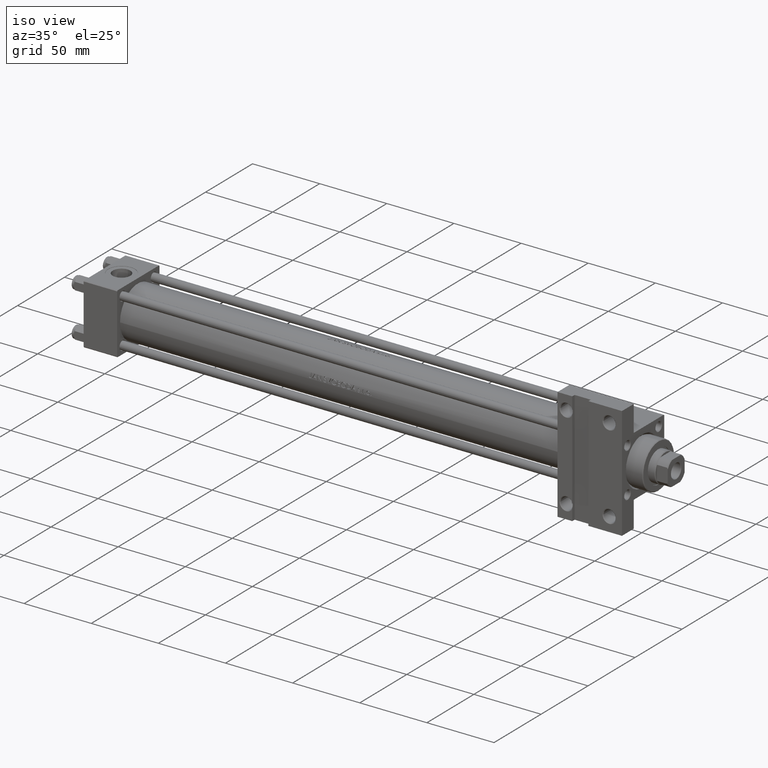
[diagram: clean part render]
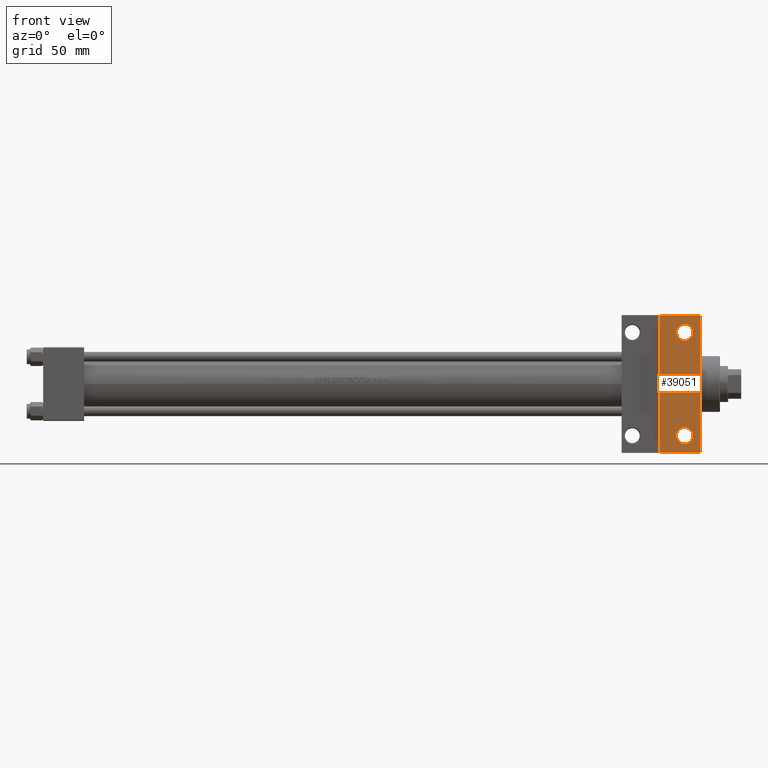
[diagram: tour spotlight — one face highlighted and labeled with its STEP entity id]
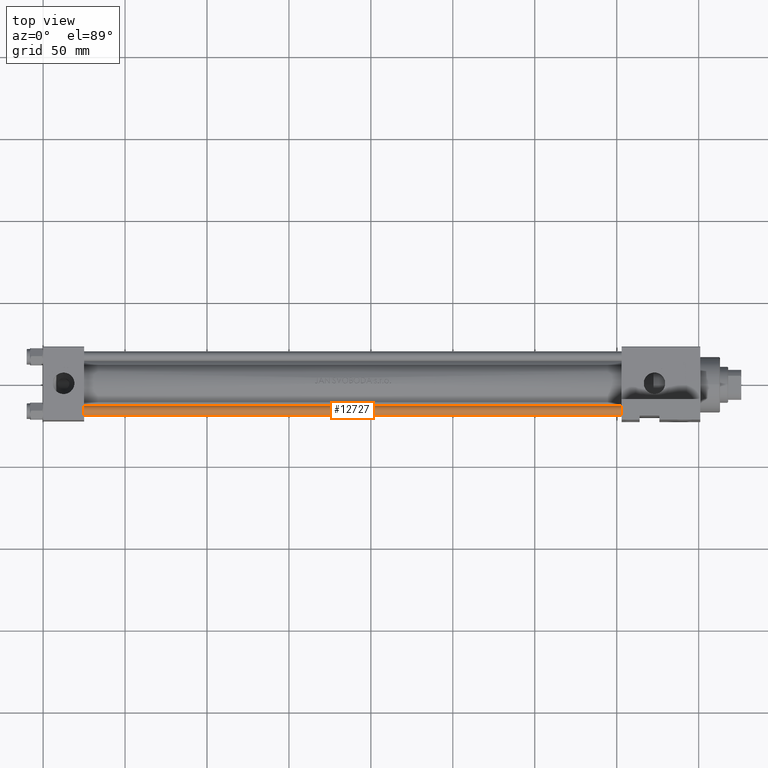
[diagram: tour spotlight — one face highlighted and labeled with its STEP entity id]
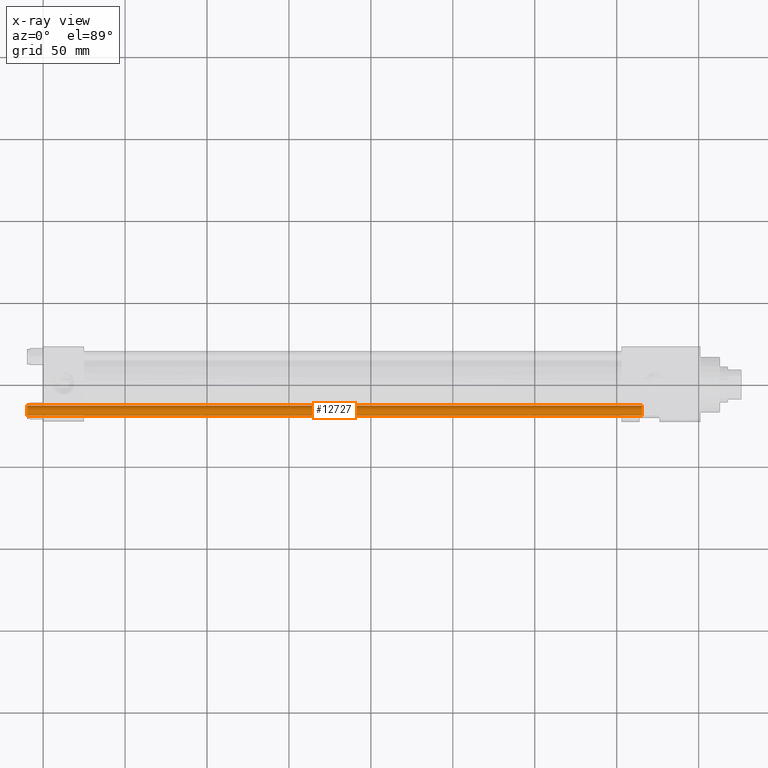
[diagram: x-ray of the same camera — body ghosted, this tour face saturated]
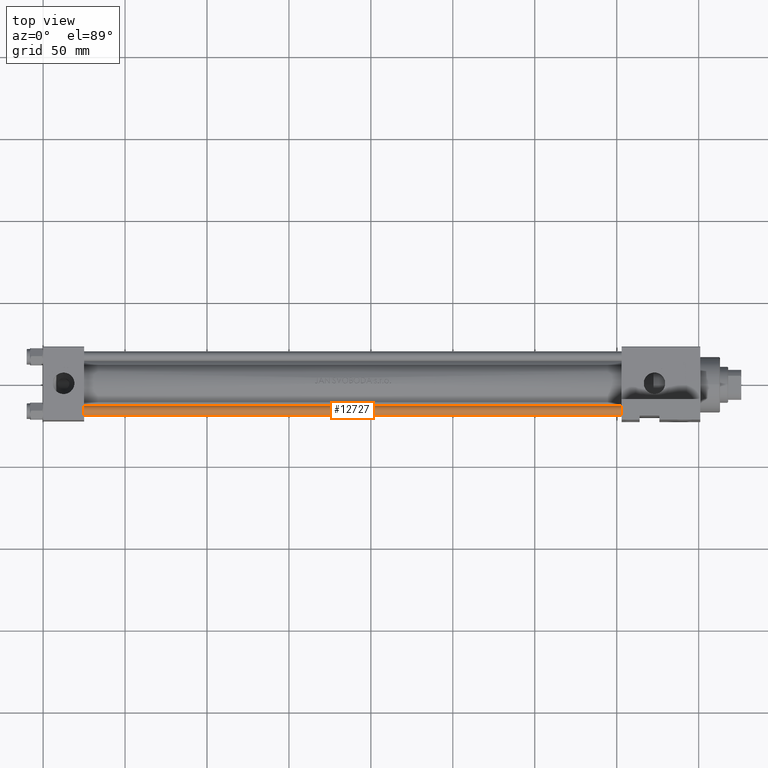
[diagram: tour spotlight — one face highlighted and labeled with its STEP entity id]
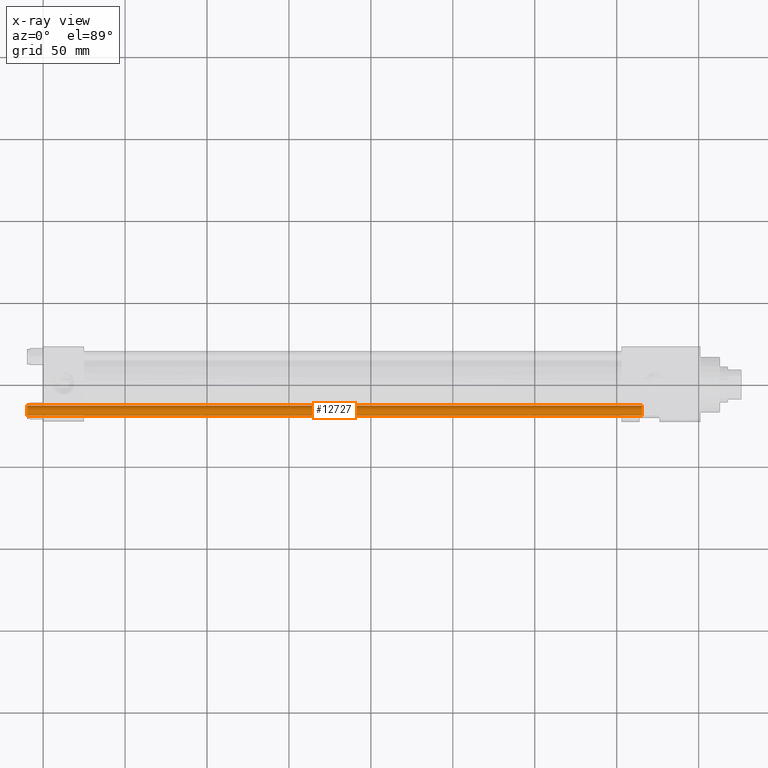
[diagram: x-ray of the same camera — body ghosted, this tour face saturated]
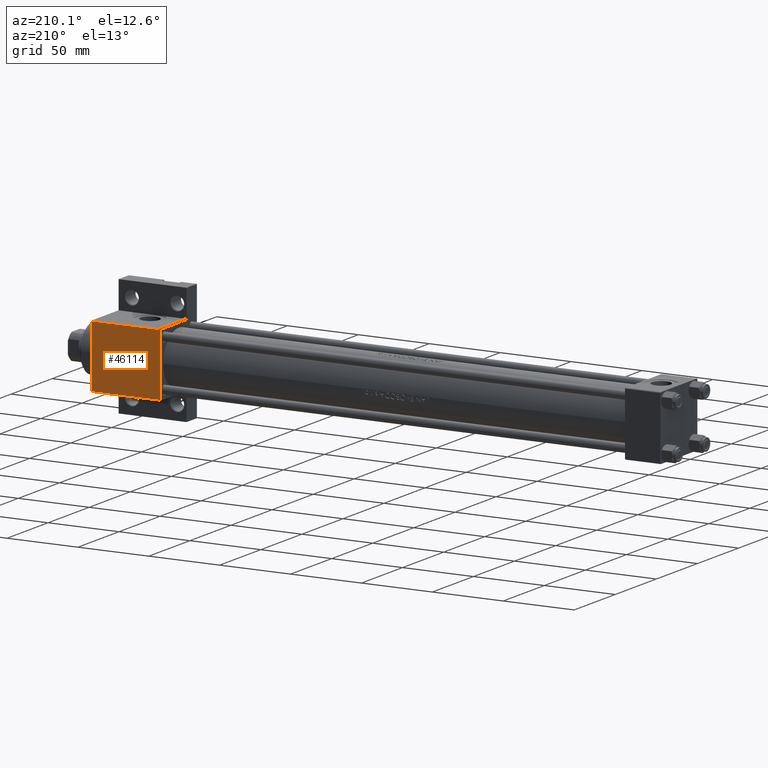
[diagram: tour spotlight — one face highlighted and labeled with its STEP entity id]
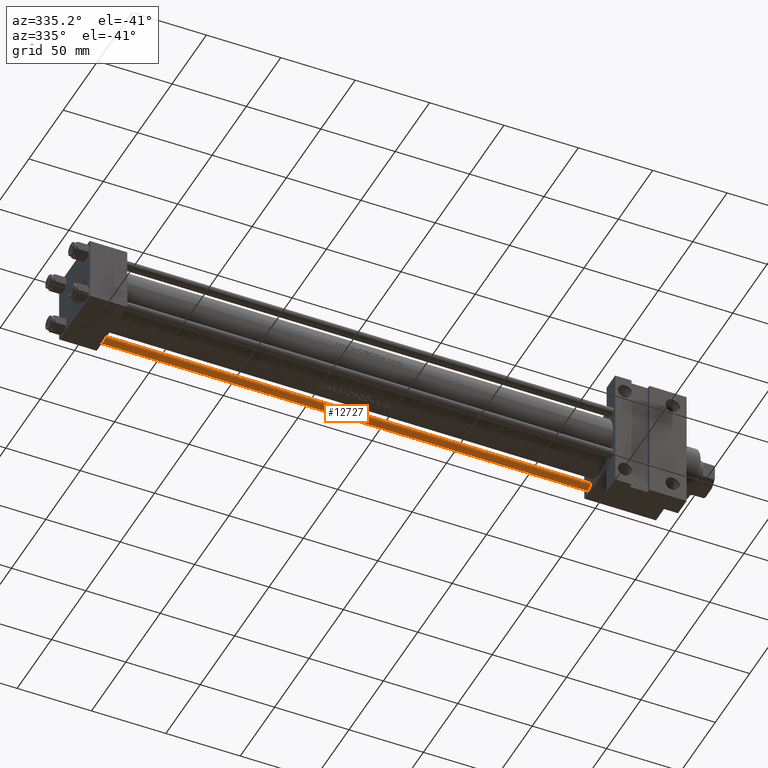
[diagram: tour spotlight — one face highlighted and labeled with its STEP entity id]
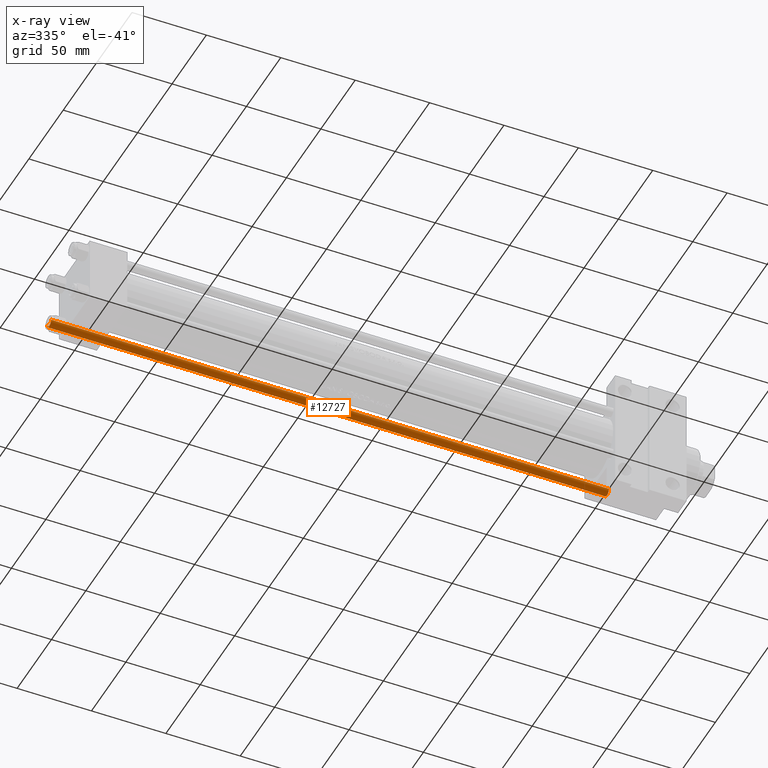
[diagram: x-ray of the same camera — body ghosted, this tour face saturated]
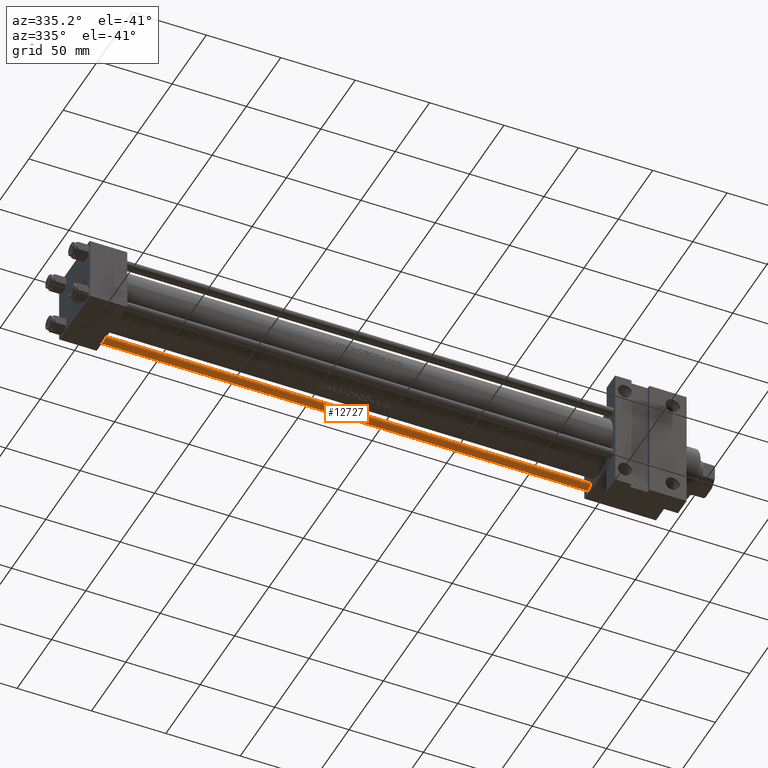
[diagram: tour spotlight — one face highlighted and labeled with its STEP entity id]
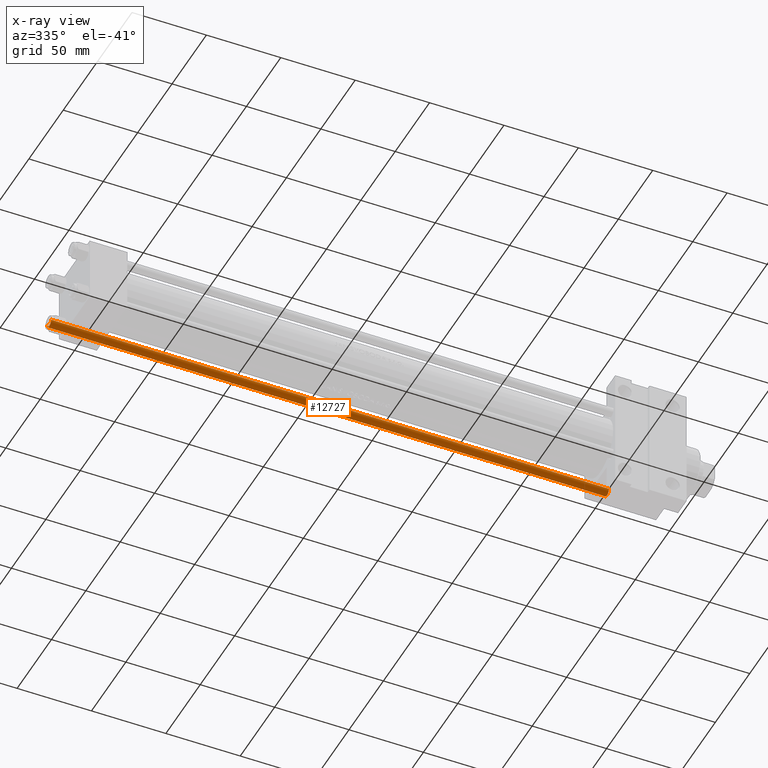
[diagram: x-ray of the same camera — body ghosted, this tour face saturated]
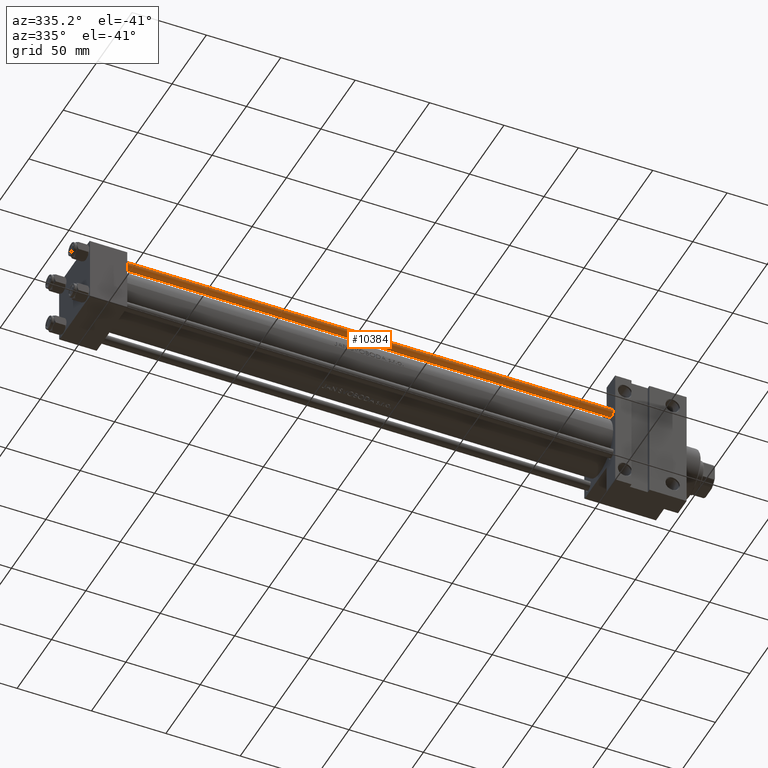
[diagram: tour spotlight — one face highlighted and labeled with its STEP entity id]
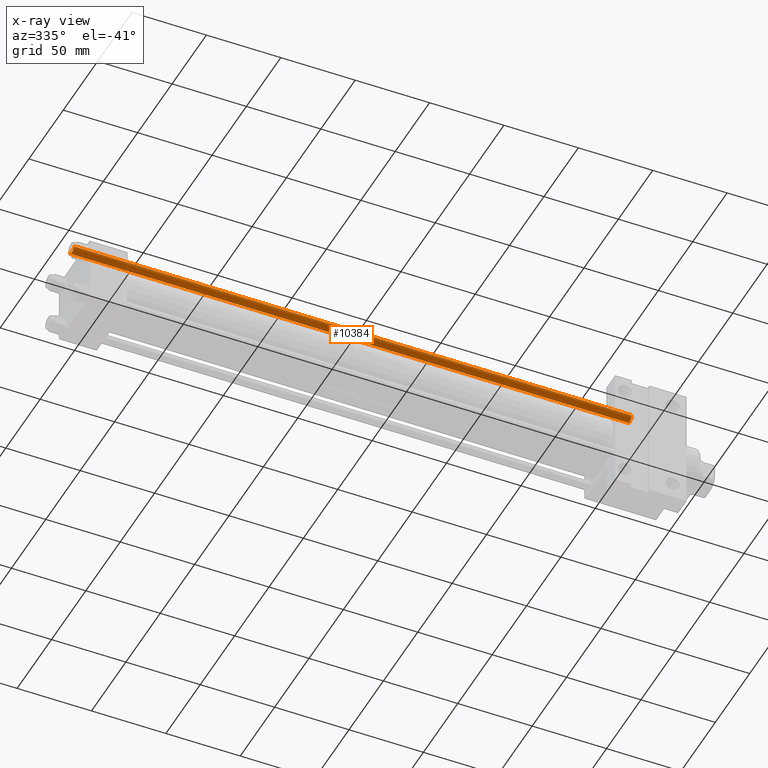
[diagram: x-ray of the same camera — body ghosted, this tour face saturated]
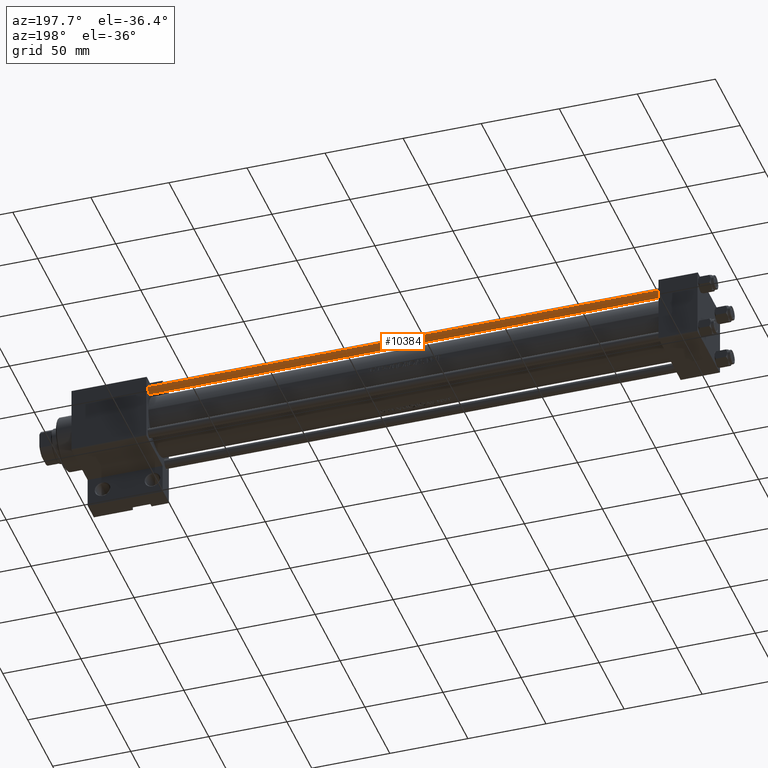
[diagram: tour spotlight — one face highlighted and labeled with its STEP entity id]
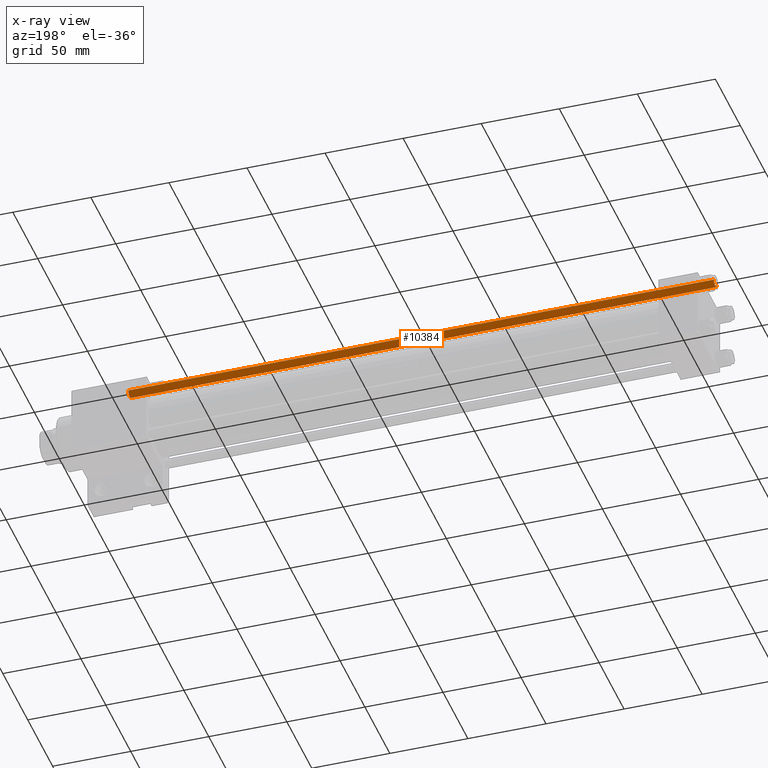
[diagram: x-ray of the same camera — body ghosted, this tour face saturated]
A machine part: a face-by-face anatomy tour. The part has 1102 B-rep faces; the first image is the clean iso view, then the 8 largest visible faces are spotlighted one at a time (largest first), each with its STEP entity span.

Face 1 — front view, entity #39051. In plain terms, the highlighted planar face has unit normal (0, -1, -0).
Definition (entity closure, byte-faithful):
#414 = ORIENTED_EDGE ( 'NONE', *, *, #5101, .T. ) ;
#875 = ORIENTED_EDGE ( 'NONE', *, *, #37251, .T. ) ;
#1439 = EDGE_CURVE ( 'NONE', #1528, #22486, #35266, .T. ) ;
#1528 = VERTEX_POINT ( 'NONE', #9298 ) ;
#2141 = DIRECTION ( 'NONE',  ( 0.000000000000000000, 7.709882115452476934E-17, -1.000000000000000000 ) ) ;
#2443 = CARTESIAN_POINT ( 'NONE',  ( 391.4999999999999432, -31.50000000000000000, -22.50000000000000000 ) ) ;
#3647 = CARTESIAN_POINT ( 'NONE',  ( 386.5005000000001587, -31.50000000000000000, -22.50000000000000000 ) ) ;
#4189 = EDGE_CURVE ( 'NONE', #18960, #36683, #10552, .T. ) ;
#4488 = DIRECTION ( 'NONE',  ( -0.000000000000000000, -7.709882115452476934E-17, 1.000000000000000000 ) ) ;
#4710 = EDGE_CURVE ( 'NONE', #40389, #36683, #20770, .T. ) ;
#4746 = VERTEX_POINT ( 'NONE', #27465 ) ;
#5101 = EDGE_CURVE ( 'NONE', #22486, #1528, #32284, .T. ) ;
#5105 = EDGE_LOOP ( 'NONE', ( #26513, #6484, #875, #26002 ) ) ;
#5133 = DIRECTION ( 'NONE',  ( -0.000000000000000000, -7.709882115452476934E-17, 1.000000000000000000 ) ) ;
#5526 = FACE_BOUND ( 'NONE', #43813, .T. ) ;
#5632 = DIRECTION ( 'NONE',  ( 1.000000000000000000, 0.000000000000000000, 0.000000000000000000 ) ) ;
#5746 = EDGE_CURVE ( 'NONE', #34631, #22233, #11490, .T. ) ;
#6005 = FACE_BOUND ( 'NONE', #17871, .T. ) ;
#6484 = ORIENTED_EDGE ( 'NONE', *, *, #45851, .T. ) ;
#6855 = AXIS2_PLACEMENT_3D ( 'NONE', #2443, #24165, #17163 ) ;
#7928 = EDGE_CURVE ( 'NONE', #22233, #34631, #12331, .T. ) ;
#9298 = CARTESIAN_POINT ( 'NONE',  ( 396.4994999999997844, 31.50000000000000000, -22.49999999999999645 ) ) ;
#9475 = DIRECTION ( 'NONE',  ( 0.000000000000000000, 1.000000000000000000, 0.000000000000000000 ) ) ;
#10552 = LINE ( 'NONE', #29383, #44584 ) ;
#11490 = CIRCLE ( 'NONE', #6855, 4.999499999999823530 ) ;
#12331 = CIRCLE ( 'NONE', #45476, 4.999499999999823530 ) ;
#14228 = DIRECTION ( 'NONE',  ( -1.000000000000000000, 2.891205793294679312E-16, -0.000000000000000000 ) ) ;
#14410 = CARTESIAN_POINT ( 'NONE',  ( 391.4999999999999432, 31.50000000000000000, -22.49999999999999645 ) ) ;
#17163 = DIRECTION ( 'NONE',  ( 0.000000000000000000, 1.000000000000000000, 0.000000000000000000 ) ) ;
#17223 = ORIENTED_EDGE ( 'NONE', *, *, #7928, .T. ) ;
#17871 = EDGE_LOOP ( 'NONE', ( #414, #33170 ) ) ;
#18960 = VERTEX_POINT ( 'NONE', #26291 ) ;
#18968 = LINE ( 'NONE', #25119, #41349 ) ;
#20135 = CARTESIAN_POINT ( 'NONE',  ( 401.0000000000000000, 22.50000000000000355, -22.49999999999999645 ) ) ;
#20770 = LINE ( 'NONE', #43219, #33059 ) ;
#20787 = CARTESIAN_POINT ( 'NONE',  ( 376.0000000000000000, -41.99999999999996447, -22.50000000000000000 ) ) ;
#20883 = CARTESIAN_POINT ( 'NONE',  ( 386.5005000000001587, 31.50000000000000000, -22.49999999999999645 ) ) ;
#22233 = VERTEX_POINT ( 'NONE', #3647 ) ;
#22486 = VERTEX_POINT ( 'NONE', #20883 ) ;
#23779 = AXIS2_PLACEMENT_3D ( 'NONE', #14410, #36875, #25531 ) ;
#24165 = DIRECTION ( 'NONE',  ( -0.000000000000000000, -7.709882115452476934E-17, 1.000000000000000000 ) ) ;
#25119 = CARTESIAN_POINT ( 'NONE',  ( 353.0000000000000000, 41.99999999999996447, -22.50000000000000000 ) ) ;
#25531 = DIRECTION ( 'NONE',  ( 0.000000000000000000, 1.000000000000000000, 0.000000000000000000 ) ) ;
#26002 = ORIENTED_EDGE ( 'NONE', *, *, #4710, .T. ) ;
#26291 = CARTESIAN_POINT ( 'NONE',  ( 376.0000000000000000, 41.99999999999996447, -22.50000000000000000 ) ) ;
#26513 = ORIENTED_EDGE ( 'NONE', *, *, #4189, .F. ) ;
#27465 = CARTESIAN_POINT ( 'NONE',  ( 401.0000000000000000, 41.99999999999996447, -22.50000000000000000 ) ) ;
#28219 = FACE_OUTER_BOUND ( 'NONE', #5105, .T. ) ;
#29383 = CARTESIAN_POINT ( 'NONE',  ( 376.0000000000000000, -41.99999999999996447, -22.50000000000000000 ) ) ;
#30330 = DIRECTION ( 'NONE',  ( 0.000000000000000000, 1.000000000000000000, 0.000000000000000000 ) ) ;
#31361 = CARTESIAN_POINT ( 'NONE',  ( 401.0000000000000000, 22.50000000000000355, -22.49999999999999645 ) ) ;
#32284 = CIRCLE ( 'NONE', #23779, 4.999499999999823530 ) ;
#32807 = CARTESIAN_POINT ( 'NONE',  ( 401.0000000000000000, -42.00000000000004974, -22.50000000000000000 ) ) ;
#33059 = VECTOR ( 'NONE', #14228, 1000.000000000000000 ) ;
#33170 = ORIENTED_EDGE ( 'NONE', *, *, #1439, .T. ) ;
#33484 = CARTESIAN_POINT ( 'NONE',  ( 391.4999999999999432, 31.50000000000000000, -22.49999999999999645 ) ) ;
#34631 = VERTEX_POINT ( 'NONE', #38709 ) ;
#35266 = CIRCLE ( 'NONE', #43726, 4.999499999999823530 ) ;
#35837 = ORIENTED_EDGE ( 'NONE', *, *, #5746, .T. ) ;
#36683 = VERTEX_POINT ( 'NONE', #20787 ) ;
#36875 = DIRECTION ( 'NONE',  ( -0.000000000000000000, -7.709882115452476934E-17, 1.000000000000000000 ) ) ;
#37251 = EDGE_CURVE ( 'NONE', #4746, #40389, #39202, .T. ) ;
#38709 = CARTESIAN_POINT ( 'NONE',  ( 396.4994999999997844, -31.50000000000000000, -22.50000000000000000 ) ) ;
#39051 = ADVANCED_FACE ( 'NONE', ( #28219, #6005, #5526 ), #46784, .T. ) ;
#39202 = LINE ( 'NONE', #20135, #47340 ) ;
#40337 = AXIS2_PLACEMENT_3D ( 'NONE', #31361, #2141, #46054 ) ;
#40389 = VERTEX_POINT ( 'NONE', #32807 ) ;
#41349 = VECTOR ( 'NONE', #5632, 1000.000000000000000 ) ;
#42539 = CARTESIAN_POINT ( 'NONE',  ( 391.4999999999999432, -31.50000000000000000, -22.50000000000000000 ) ) ;
#43219 = CARTESIAN_POINT ( 'NONE',  ( 353.0000000000000568, -42.00000000000003553, -22.50000000000000000 ) ) ;
#43726 = AXIS2_PLACEMENT_3D ( 'NONE', #33484, #4488, #30330 ) ;
#43813 = EDGE_LOOP ( 'NONE', ( #17223, #35837 ) ) ;
#44086 = DIRECTION ( 'NONE',  ( -0.000000000000000000, -1.000000000000000000, -0.000000000000000000 ) ) ;
#44584 = VECTOR ( 'NONE', #44086, 1000.000000000000000 ) ;
#45476 = AXIS2_PLACEMENT_3D ( 'NONE', #42539, #5133, #9475 ) ;
#45851 = EDGE_CURVE ( 'NONE', #18960, #4746, #18968, .T. ) ;
#46054 = DIRECTION ( 'NONE',  ( 0.000000000000000000, 1.000000000000000000, 7.709882115452476934E-17 ) ) ;
#46784 = PLANE ( 'NONE',  #40337 ) ;
#46912 = DIRECTION ( 'NONE',  ( 0.000000000000000000, -1.000000000000000000, -7.709882115452476934E-17 ) ) ;
#47340 = VECTOR ( 'NONE', #46912, 1000.000000000000000 ) ;

Face 2 — top view, entity #12727. An x-ray twin of the same camera follows (body ghosted, this face saturated) — the face is partly hidden behind the body. In plain terms, the highlighted cylindrical surface (edge-blend (fillet) strip) has radius 3 mm, axis along (1, -0, 0).
Definition (entity closure, byte-faithful):
#803 = CARTESIAN_POINT ( 'NONE',  ( 0.000000000000000000, 0.000000000000000000, 376.0000000000000000 ) ) ;
#2118 = VERTEX_POINT ( 'NONE', #33482 ) ;
#3075 = VECTOR ( 'NONE', #33621, 1000.000000000000000 ) ;
#3254 = CIRCLE ( 'NONE', #42555, 3.000000000000000444 ) ;
#3548 = DIRECTION ( 'NONE',  ( -0.000000000000000000, -0.000000000000000000, 1.000000000000000000 ) ) ;
#3571 = CARTESIAN_POINT ( 'NONE',  ( 0.000000000000000000, 0.000000000000000000, 375.5000000000000568 ) ) ;
#3811 = VERTEX_POINT ( 'NONE', #39175 ) ;
#4030 = DIRECTION ( 'NONE',  ( 1.000000000000000000, 0.000000000000000000, 0.000000000000000000 ) ) ;
#4185 = CYLINDRICAL_SURFACE ( 'NONE', #20187, 3.000000000000000444 ) ;
#4271 = CARTESIAN_POINT ( 'NONE',  ( 0.000000000000000000, 0.000000000000000000, 0.4999999999999449329 ) ) ;
#4476 = CARTESIAN_POINT ( 'NONE',  ( 3.000000000000000444, 3.673940397442060361E-16, 375.5000000000000568 ) ) ;
#4575 = CARTESIAN_POINT ( 'NONE',  ( 3.000000000000000444, 3.673940397442060361E-16, 0.4999999999999449329 ) ) ;
#5448 = ORIENTED_EDGE ( 'NONE', *, *, #41001, .T. ) ;
#7308 = DIRECTION ( 'NONE',  ( -0.000000000000000000, -0.000000000000000000, -1.000000000000000000 ) ) ;
#8731 = ORIENTED_EDGE ( 'NONE', *, *, #25384, .F. ) ;
#9514 = EDGE_CURVE ( 'NONE', #3811, #34688, #36309, .T. ) ;
#11004 = LINE ( 'NONE', #47206, #36573 ) ;
#12727 = ADVANCED_FACE ( 'NONE', ( #25674 ), #4185, .T. ) ;
#13929 = AXIS2_PLACEMENT_3D ( 'NONE', #4271, #3548, #4030 ) ;
#14142 = DIRECTION ( 'NONE',  ( -0.000000000000000000, -0.000000000000000000, -1.000000000000000000 ) ) ;
#14422 = DIRECTION ( 'NONE',  ( 0.000000000000000000, 0.000000000000000000, -1.000000000000000000 ) ) ;
#18872 = CARTESIAN_POINT ( 'NONE',  ( 3.000000000000000444, 3.673940397442060361E-16, 376.0000000000000000 ) ) ;
#20187 = AXIS2_PLACEMENT_3D ( 'NONE', #803, #7308, #33168 ) ;
#25384 = EDGE_CURVE ( 'NONE', #30462, #34688, #37232, .T. ) ;
#25674 = FACE_OUTER_BOUND ( 'NONE', #35143, .T. ) ;
#30462 = VERTEX_POINT ( 'NONE', #4476 ) ;
#31878 = EDGE_CURVE ( 'NONE', #30462, #2118, #3254, .T. ) ;
#33168 = DIRECTION ( 'NONE',  ( -1.000000000000000000, 0.000000000000000000, 0.000000000000000000 ) ) ;
#33482 = CARTESIAN_POINT ( 'NONE',  ( -3.000000000000000444, 0.000000000000000000, 375.5000000000000568 ) ) ;
#33621 = DIRECTION ( 'NONE',  ( -0.000000000000000000, -0.000000000000000000, -1.000000000000000000 ) ) ;
#34688 = VERTEX_POINT ( 'NONE', #4575 ) ;
#35143 = EDGE_LOOP ( 'NONE', ( #8731, #43563, #5448, #35377 ) ) ;
#35377 = ORIENTED_EDGE ( 'NONE', *, *, #9514, .T. ) ;
#36309 = CIRCLE ( 'NONE', #13929, 3.000000000000000444 ) ;
#36573 = VECTOR ( 'NONE', #14142, 1000.000000000000000 ) ;
#37232 = LINE ( 'NONE', #18872, #3075 ) ;
#39175 = CARTESIAN_POINT ( 'NONE',  ( -3.000000000000000444, 0.000000000000000000, 0.4999999999999449329 ) ) ;
#41001 = EDGE_CURVE ( 'NONE', #2118, #3811, #11004, .T. ) ;
#42555 = AXIS2_PLACEMENT_3D ( 'NONE', #3571, #14422, #47258 ) ;
#43563 = ORIENTED_EDGE ( 'NONE', *, *, #31878, .T. ) ;
#47206 = CARTESIAN_POINT ( 'NONE',  ( -3.000000000000000444, 0.000000000000000000, 376.0000000000000000 ) ) ;
#47258 = DIRECTION ( 'NONE',  ( 1.000000000000000000, 0.000000000000000000, 0.000000000000000000 ) ) ;

Face 3 — top view, entity #12727. An x-ray twin of the same camera follows (body ghosted, this face saturated) — the face is partly hidden behind the body. In plain terms, the highlighted cylindrical surface (edge-blend (fillet) strip) has radius 3 mm, axis along (-1, 0, 0).
Definition (entity closure, byte-faithful):
#803 = CARTESIAN_POINT ( 'NONE',  ( 0.000000000000000000, 0.000000000000000000, 376.0000000000000000 ) ) ;
#2118 = VERTEX_POINT ( 'NONE', #33482 ) ;
#3075 = VECTOR ( 'NONE', #33621, 1000.000000000000000 ) ;
#3254 = CIRCLE ( 'NONE', #42555, 3.000000000000000444 ) ;
#3548 = DIRECTION ( 'NONE',  ( -0.000000000000000000, -0.000000000000000000, 1.000000000000000000 ) ) ;
#3571 = CARTESIAN_POINT ( 'NONE',  ( 0.000000000000000000, 0.000000000000000000, 375.5000000000000568 ) ) ;
#3811 = VERTEX_POINT ( 'NONE', #39175 ) ;
#4030 = DIRECTION ( 'NONE',  ( 1.000000000000000000, 0.000000000000000000, 0.000000000000000000 ) ) ;
#4185 = CYLINDRICAL_SURFACE ( 'NONE', #20187, 3.000000000000000444 ) ;
#4271 = CARTESIAN_POINT ( 'NONE',  ( 0.000000000000000000, 0.000000000000000000, 0.4999999999999449329 ) ) ;
#4476 = CARTESIAN_POINT ( 'NONE',  ( 3.000000000000000444, 3.673940397442060361E-16, 375.5000000000000568 ) ) ;
#4575 = CARTESIAN_POINT ( 'NONE',  ( 3.000000000000000444, 3.673940397442060361E-16, 0.4999999999999449329 ) ) ;
#5448 = ORIENTED_EDGE ( 'NONE', *, *, #41001, .T. ) ;
#7308 = DIRECTION ( 'NONE',  ( -0.000000000000000000, -0.000000000000000000, -1.000000000000000000 ) ) ;
#8731 = ORIENTED_EDGE ( 'NONE', *, *, #25384, .F. ) ;
#9514 = EDGE_CURVE ( 'NONE', #3811, #34688, #36309, .T. ) ;
#11004 = LINE ( 'NONE', #47206, #36573 ) ;
#12727 = ADVANCED_FACE ( 'NONE', ( #25674 ), #4185, .T. ) ;
#13929 = AXIS2_PLACEMENT_3D ( 'NONE', #4271, #3548, #4030 ) ;
#14142 = DIRECTION ( 'NONE',  ( -0.000000000000000000, -0.000000000000000000, -1.000000000000000000 ) ) ;
#14422 = DIRECTION ( 'NONE',  ( 0.000000000000000000, 0.000000000000000000, -1.000000000000000000 ) ) ;
#18872 = CARTESIAN_POINT ( 'NONE',  ( 3.000000000000000444, 3.673940397442060361E-16, 376.0000000000000000 ) ) ;
#20187 = AXIS2_PLACEMENT_3D ( 'NONE', #803, #7308, #33168 ) ;
#25384 = EDGE_CURVE ( 'NONE', #30462, #34688, #37232, .T. ) ;
#25674 = FACE_OUTER_BOUND ( 'NONE', #35143, .T. ) ;
#30462 = VERTEX_POINT ( 'NONE', #4476 ) ;
#31878 = EDGE_CURVE ( 'NONE', #30462, #2118, #3254, .T. ) ;
#33168 = DIRECTION ( 'NONE',  ( -1.000000000000000000, 0.000000000000000000, 0.000000000000000000 ) ) ;
#33482 = CARTESIAN_POINT ( 'NONE',  ( -3.000000000000000444, 0.000000000000000000, 375.5000000000000568 ) ) ;
#33621 = DIRECTION ( 'NONE',  ( -0.000000000000000000, -0.000000000000000000, -1.000000000000000000 ) ) ;
#34688 = VERTEX_POINT ( 'NONE', #4575 ) ;
#35143 = EDGE_LOOP ( 'NONE', ( #8731, #43563, #5448, #35377 ) ) ;
#35377 = ORIENTED_EDGE ( 'NONE', *, *, #9514, .T. ) ;
#36309 = CIRCLE ( 'NONE', #13929, 3.000000000000000444 ) ;
#36573 = VECTOR ( 'NONE', #14142, 1000.000000000000000 ) ;
#37232 = LINE ( 'NONE', #18872, #3075 ) ;
#39175 = CARTESIAN_POINT ( 'NONE',  ( -3.000000000000000444, 0.000000000000000000, 0.4999999999999449329 ) ) ;
#41001 = EDGE_CURVE ( 'NONE', #2118, #3811, #11004, .T. ) ;
#42555 = AXIS2_PLACEMENT_3D ( 'NONE', #3571, #14422, #47258 ) ;
#43563 = ORIENTED_EDGE ( 'NONE', *, *, #31878, .T. ) ;
#47206 = CARTESIAN_POINT ( 'NONE',  ( -3.000000000000000444, 0.000000000000000000, 376.0000000000000000 ) ) ;
#47258 = DIRECTION ( 'NONE',  ( 1.000000000000000000, 0.000000000000000000, 0.000000000000000000 ) ) ;

Face 4 — auxiliary view, entity #46114. In plain terms, the highlighted planar face has unit normal (0, -1, -0).
Definition (entity closure, byte-faithful):
#646 = DIRECTION ( 'NONE',  ( 0.000000000000000000, -1.000000000000000000, -2.312964634635742957E-16 ) ) ;
#2903 = DIRECTION ( 'NONE',  ( 1.000000000000000000, 0.000000000000000000, 0.000000000000000000 ) ) ;
#3212 = DIRECTION ( 'NONE',  ( -1.000000000000000000, 0.000000000000000000, 0.000000000000000000 ) ) ;
#4421 = VECTOR ( 'NONE', #646, 1000.000000000000000 ) ;
#5280 = CARTESIAN_POINT ( 'NONE',  ( 401.0000000000000000, 22.50000000000000355, 22.50000000000000355 ) ) ;
#11010 = ORIENTED_EDGE ( 'NONE', *, *, #11040, .T. ) ;
#11040 = EDGE_CURVE ( 'NONE', #34166, #27373, #24230, .T. ) ;
#14009 = LINE ( 'NONE', #17861, #27165 ) ;
#15116 = CARTESIAN_POINT ( 'NONE',  ( 353.0000000000000568, 22.50000000000000355, 22.50000000000000355 ) ) ;
#15223 = VERTEX_POINT ( 'NONE', #30727 ) ;
#15914 = AXIS2_PLACEMENT_3D ( 'NONE', #5280, #20476, #23621 ) ;
#16587 = EDGE_CURVE ( 'NONE', #15223, #32966, #14009, .T. ) ;
#17861 = CARTESIAN_POINT ( 'NONE',  ( 401.0000000000000000, -21.99999999999993960, 22.49999999999999289 ) ) ;
#18739 = LINE ( 'NONE', #15116, #4421 ) ;
#19236 = CARTESIAN_POINT ( 'NONE',  ( 401.0000000000000000, 22.00000000000000355, 22.50000000000000355 ) ) ;
#20403 = EDGE_CURVE ( 'NONE', #27373, #15223, #18739, .T. ) ;
#20476 = DIRECTION ( 'NONE',  ( 0.000000000000000000, 2.312964634635742957E-16, -1.000000000000000000 ) ) ;
#21314 = DIRECTION ( 'NONE',  ( 0.000000000000000000, -1.000000000000000000, -2.312964634635742957E-16 ) ) ;
#21552 = CARTESIAN_POINT ( 'NONE',  ( 353.0000000000000568, 22.00000000000000355, 22.50000000000000355 ) ) ;
#23621 = DIRECTION ( 'NONE',  ( 0.000000000000000000, 1.000000000000000000, 2.312964634635742957E-16 ) ) ;
#24230 = LINE ( 'NONE', #21552, #45571 ) ;
#25181 = LINE ( 'NONE', #39888, #30830 ) ;
#25327 = EDGE_CURVE ( 'NONE', #34166, #32966, #25181, .T. ) ;
#26439 = ORIENTED_EDGE ( 'NONE', *, *, #20403, .T. ) ;
#27010 = CARTESIAN_POINT ( 'NONE',  ( 401.0000000000000000, -21.99999999999992539, 22.49999999999999289 ) ) ;
#27165 = VECTOR ( 'NONE', #2903, 1000.000000000000000 ) ;
#27259 = FACE_OUTER_BOUND ( 'NONE', #43975, .T. ) ;
#27373 = VERTEX_POINT ( 'NONE', #32844 ) ;
#30727 = CARTESIAN_POINT ( 'NONE',  ( 353.0000000000000568, -21.99999999999992539, 22.49999999999999289 ) ) ;
#30830 = VECTOR ( 'NONE', #21314, 1000.000000000000000 ) ;
#32844 = CARTESIAN_POINT ( 'NONE',  ( 353.0000000000000568, 22.00000000000000355, 22.50000000000000355 ) ) ;
#32966 = VERTEX_POINT ( 'NONE', #27010 ) ;
#34166 = VERTEX_POINT ( 'NONE', #19236 ) ;
#35769 = ORIENTED_EDGE ( 'NONE', *, *, #25327, .F. ) ;
#39888 = CARTESIAN_POINT ( 'NONE',  ( 401.0000000000000000, 22.50000000000000355, 22.50000000000000355 ) ) ;
#41971 = PLANE ( 'NONE',  #15914 ) ;
#43975 = EDGE_LOOP ( 'NONE', ( #35769, #11010, #26439, #44726 ) ) ;
#44726 = ORIENTED_EDGE ( 'NONE', *, *, #16587, .T. ) ;
#45571 = VECTOR ( 'NONE', #3212, 1000.000000000000000 ) ;
#46114 = ADVANCED_FACE ( 'NONE', ( #27259 ), #41971, .F. ) ;

Face 5 — auxiliary view, entity #12727. An x-ray twin of the same camera follows (body ghosted, this face saturated) — the face is partly hidden behind the body. In plain terms, the highlighted cylindrical surface (edge-blend (fillet) strip) has radius 3 mm, axis along (1, 0, 0).
Definition (entity closure, byte-faithful):
#803 = CARTESIAN_POINT ( 'NONE',  ( 0.000000000000000000, 0.000000000000000000, 376.0000000000000000 ) ) ;
#2118 = VERTEX_POINT ( 'NONE', #33482 ) ;
#3075 = VECTOR ( 'NONE', #33621, 1000.000000000000000 ) ;
#3254 = CIRCLE ( 'NONE', #42555, 3.000000000000000444 ) ;
#3548 = DIRECTION ( 'NONE',  ( -0.000000000000000000, -0.000000000000000000, 1.000000000000000000 ) ) ;
#3571 = CARTESIAN_POINT ( 'NONE',  ( 0.000000000000000000, 0.000000000000000000, 375.5000000000000568 ) ) ;
#3811 = VERTEX_POINT ( 'NONE', #39175 ) ;
#4030 = DIRECTION ( 'NONE',  ( 1.000000000000000000, 0.000000000000000000, 0.000000000000000000 ) ) ;
#4185 = CYLINDRICAL_SURFACE ( 'NONE', #20187, 3.000000000000000444 ) ;
#4271 = CARTESIAN_POINT ( 'NONE',  ( 0.000000000000000000, 0.000000000000000000, 0.4999999999999449329 ) ) ;
#4476 = CARTESIAN_POINT ( 'NONE',  ( 3.000000000000000444, 3.673940397442060361E-16, 375.5000000000000568 ) ) ;
#4575 = CARTESIAN_POINT ( 'NONE',  ( 3.000000000000000444, 3.673940397442060361E-16, 0.4999999999999449329 ) ) ;
#5448 = ORIENTED_EDGE ( 'NONE', *, *, #41001, .T. ) ;
#7308 = DIRECTION ( 'NONE',  ( -0.000000000000000000, -0.000000000000000000, -1.000000000000000000 ) ) ;
#8731 = ORIENTED_EDGE ( 'NONE', *, *, #25384, .F. ) ;
#9514 = EDGE_CURVE ( 'NONE', #3811, #34688, #36309, .T. ) ;
#11004 = LINE ( 'NONE', #47206, #36573 ) ;
#12727 = ADVANCED_FACE ( 'NONE', ( #25674 ), #4185, .T. ) ;
#13929 = AXIS2_PLACEMENT_3D ( 'NONE', #4271, #3548, #4030 ) ;
#14142 = DIRECTION ( 'NONE',  ( -0.000000000000000000, -0.000000000000000000, -1.000000000000000000 ) ) ;
#14422 = DIRECTION ( 'NONE',  ( 0.000000000000000000, 0.000000000000000000, -1.000000000000000000 ) ) ;
#18872 = CARTESIAN_POINT ( 'NONE',  ( 3.000000000000000444, 3.673940397442060361E-16, 376.0000000000000000 ) ) ;
#20187 = AXIS2_PLACEMENT_3D ( 'NONE', #803, #7308, #33168 ) ;
#25384 = EDGE_CURVE ( 'NONE', #30462, #34688, #37232, .T. ) ;
#25674 = FACE_OUTER_BOUND ( 'NONE', #35143, .T. ) ;
#30462 = VERTEX_POINT ( 'NONE', #4476 ) ;
#31878 = EDGE_CURVE ( 'NONE', #30462, #2118, #3254, .T. ) ;
#33168 = DIRECTION ( 'NONE',  ( -1.000000000000000000, 0.000000000000000000, 0.000000000000000000 ) ) ;
#33482 = CARTESIAN_POINT ( 'NONE',  ( -3.000000000000000444, 0.000000000000000000, 375.5000000000000568 ) ) ;
#33621 = DIRECTION ( 'NONE',  ( -0.000000000000000000, -0.000000000000000000, -1.000000000000000000 ) ) ;
#34688 = VERTEX_POINT ( 'NONE', #4575 ) ;
#35143 = EDGE_LOOP ( 'NONE', ( #8731, #43563, #5448, #35377 ) ) ;
#35377 = ORIENTED_EDGE ( 'NONE', *, *, #9514, .T. ) ;
#36309 = CIRCLE ( 'NONE', #13929, 3.000000000000000444 ) ;
#36573 = VECTOR ( 'NONE', #14142, 1000.000000000000000 ) ;
#37232 = LINE ( 'NONE', #18872, #3075 ) ;
#39175 = CARTESIAN_POINT ( 'NONE',  ( -3.000000000000000444, 0.000000000000000000, 0.4999999999999449329 ) ) ;
#41001 = EDGE_CURVE ( 'NONE', #2118, #3811, #11004, .T. ) ;
#42555 = AXIS2_PLACEMENT_3D ( 'NONE', #3571, #14422, #47258 ) ;
#43563 = ORIENTED_EDGE ( 'NONE', *, *, #31878, .T. ) ;
#47206 = CARTESIAN_POINT ( 'NONE',  ( -3.000000000000000444, 0.000000000000000000, 376.0000000000000000 ) ) ;
#47258 = DIRECTION ( 'NONE',  ( 1.000000000000000000, 0.000000000000000000, 0.000000000000000000 ) ) ;

Face 6 — auxiliary view, entity #12727. An x-ray twin of the same camera follows (body ghosted, this face saturated) — the face is partly hidden behind the body. In plain terms, the highlighted cylindrical surface (edge-blend (fillet) strip) has radius 3 mm, axis along (-1, -0, 0).
Definition (entity closure, byte-faithful):
#803 = CARTESIAN_POINT ( 'NONE',  ( 0.000000000000000000, 0.000000000000000000, 376.0000000000000000 ) ) ;
#2118 = VERTEX_POINT ( 'NONE', #33482 ) ;
#3075 = VECTOR ( 'NONE', #33621, 1000.000000000000000 ) ;
#3254 = CIRCLE ( 'NONE', #42555, 3.000000000000000444 ) ;
#3548 = DIRECTION ( 'NONE',  ( -0.000000000000000000, -0.000000000000000000, 1.000000000000000000 ) ) ;
#3571 = CARTESIAN_POINT ( 'NONE',  ( 0.000000000000000000, 0.000000000000000000, 375.5000000000000568 ) ) ;
#3811 = VERTEX_POINT ( 'NONE', #39175 ) ;
#4030 = DIRECTION ( 'NONE',  ( 1.000000000000000000, 0.000000000000000000, 0.000000000000000000 ) ) ;
#4185 = CYLINDRICAL_SURFACE ( 'NONE', #20187, 3.000000000000000444 ) ;
#4271 = CARTESIAN_POINT ( 'NONE',  ( 0.000000000000000000, 0.000000000000000000, 0.4999999999999449329 ) ) ;
#4476 = CARTESIAN_POINT ( 'NONE',  ( 3.000000000000000444, 3.673940397442060361E-16, 375.5000000000000568 ) ) ;
#4575 = CARTESIAN_POINT ( 'NONE',  ( 3.000000000000000444, 3.673940397442060361E-16, 0.4999999999999449329 ) ) ;
#5448 = ORIENTED_EDGE ( 'NONE', *, *, #41001, .T. ) ;
#7308 = DIRECTION ( 'NONE',  ( -0.000000000000000000, -0.000000000000000000, -1.000000000000000000 ) ) ;
#8731 = ORIENTED_EDGE ( 'NONE', *, *, #25384, .F. ) ;
#9514 = EDGE_CURVE ( 'NONE', #3811, #34688, #36309, .T. ) ;
#11004 = LINE ( 'NONE', #47206, #36573 ) ;
#12727 = ADVANCED_FACE ( 'NONE', ( #25674 ), #4185, .T. ) ;
#13929 = AXIS2_PLACEMENT_3D ( 'NONE', #4271, #3548, #4030 ) ;
#14142 = DIRECTION ( 'NONE',  ( -0.000000000000000000, -0.000000000000000000, -1.000000000000000000 ) ) ;
#14422 = DIRECTION ( 'NONE',  ( 0.000000000000000000, 0.000000000000000000, -1.000000000000000000 ) ) ;
#18872 = CARTESIAN_POINT ( 'NONE',  ( 3.000000000000000444, 3.673940397442060361E-16, 376.0000000000000000 ) ) ;
#20187 = AXIS2_PLACEMENT_3D ( 'NONE', #803, #7308, #33168 ) ;
#25384 = EDGE_CURVE ( 'NONE', #30462, #34688, #37232, .T. ) ;
#25674 = FACE_OUTER_BOUND ( 'NONE', #35143, .T. ) ;
#30462 = VERTEX_POINT ( 'NONE', #4476 ) ;
#31878 = EDGE_CURVE ( 'NONE', #30462, #2118, #3254, .T. ) ;
#33168 = DIRECTION ( 'NONE',  ( -1.000000000000000000, 0.000000000000000000, 0.000000000000000000 ) ) ;
#33482 = CARTESIAN_POINT ( 'NONE',  ( -3.000000000000000444, 0.000000000000000000, 375.5000000000000568 ) ) ;
#33621 = DIRECTION ( 'NONE',  ( -0.000000000000000000, -0.000000000000000000, -1.000000000000000000 ) ) ;
#34688 = VERTEX_POINT ( 'NONE', #4575 ) ;
#35143 = EDGE_LOOP ( 'NONE', ( #8731, #43563, #5448, #35377 ) ) ;
#35377 = ORIENTED_EDGE ( 'NONE', *, *, #9514, .T. ) ;
#36309 = CIRCLE ( 'NONE', #13929, 3.000000000000000444 ) ;
#36573 = VECTOR ( 'NONE', #14142, 1000.000000000000000 ) ;
#37232 = LINE ( 'NONE', #18872, #3075 ) ;
#39175 = CARTESIAN_POINT ( 'NONE',  ( -3.000000000000000444, 0.000000000000000000, 0.4999999999999449329 ) ) ;
#41001 = EDGE_CURVE ( 'NONE', #2118, #3811, #11004, .T. ) ;
#42555 = AXIS2_PLACEMENT_3D ( 'NONE', #3571, #14422, #47258 ) ;
#43563 = ORIENTED_EDGE ( 'NONE', *, *, #31878, .T. ) ;
#47206 = CARTESIAN_POINT ( 'NONE',  ( -3.000000000000000444, 0.000000000000000000, 376.0000000000000000 ) ) ;
#47258 = DIRECTION ( 'NONE',  ( 1.000000000000000000, 0.000000000000000000, 0.000000000000000000 ) ) ;

Face 7 — auxiliary view, entity #10384. An x-ray twin of the same camera follows (body ghosted, this face saturated) — the face is partly hidden behind the body. In plain terms, the highlighted cylindrical surface (edge-blend (fillet) strip) has radius 3 mm, axis along (-1, 0, 0).
Definition (entity closure, byte-faithful):
#1799 = DIRECTION ( 'NONE',  ( 1.000000000000000000, 0.000000000000000000, 0.000000000000000000 ) ) ;
#2118 = VERTEX_POINT ( 'NONE', #33482 ) ;
#3075 = VECTOR ( 'NONE', #33621, 1000.000000000000000 ) ;
#3811 = VERTEX_POINT ( 'NONE', #39175 ) ;
#4476 = CARTESIAN_POINT ( 'NONE',  ( 3.000000000000000444, 3.673940397442060361E-16, 375.5000000000000568 ) ) ;
#4575 = CARTESIAN_POINT ( 'NONE',  ( 3.000000000000000444, 3.673940397442060361E-16, 0.4999999999999449329 ) ) ;
#4989 = EDGE_LOOP ( 'NONE', ( #6163, #41163, #35129, #22973 ) ) ;
#6163 = ORIENTED_EDGE ( 'NONE', *, *, #42969, .T. ) ;
#8103 = CIRCLE ( 'NONE', #12714, 3.000000000000000444 ) ;
#9538 = CARTESIAN_POINT ( 'NONE',  ( 0.000000000000000000, 0.000000000000000000, 376.0000000000000000 ) ) ;
#10384 = ADVANCED_FACE ( 'NONE', ( #31276 ), #46205, .T. ) ;
#11004 = LINE ( 'NONE', #47206, #36573 ) ;
#12714 = AXIS2_PLACEMENT_3D ( 'NONE', #13809, #35799, #42536 ) ;
#13809 = CARTESIAN_POINT ( 'NONE',  ( 0.000000000000000000, 0.000000000000000000, 375.5000000000000568 ) ) ;
#14142 = DIRECTION ( 'NONE',  ( -0.000000000000000000, -0.000000000000000000, -1.000000000000000000 ) ) ;
#18872 = CARTESIAN_POINT ( 'NONE',  ( 3.000000000000000444, 3.673940397442060361E-16, 376.0000000000000000 ) ) ;
#20156 = DIRECTION ( 'NONE',  ( -1.000000000000000000, 0.000000000000000000, 0.000000000000000000 ) ) ;
#22973 = ORIENTED_EDGE ( 'NONE', *, *, #41001, .F. ) ;
#25384 = EDGE_CURVE ( 'NONE', #30462, #34688, #37232, .T. ) ;
#27853 = AXIS2_PLACEMENT_3D ( 'NONE', #9538, #45729, #20156 ) ;
#28774 = EDGE_CURVE ( 'NONE', #34688, #3811, #46341, .T. ) ;
#30462 = VERTEX_POINT ( 'NONE', #4476 ) ;
#31276 = FACE_OUTER_BOUND ( 'NONE', #4989, .T. ) ;
#33482 = CARTESIAN_POINT ( 'NONE',  ( -3.000000000000000444, 0.000000000000000000, 375.5000000000000568 ) ) ;
#33621 = DIRECTION ( 'NONE',  ( -0.000000000000000000, -0.000000000000000000, -1.000000000000000000 ) ) ;
#34648 = CARTESIAN_POINT ( 'NONE',  ( 0.000000000000000000, 0.000000000000000000, 0.4999999999999449329 ) ) ;
#34688 = VERTEX_POINT ( 'NONE', #4575 ) ;
#35129 = ORIENTED_EDGE ( 'NONE', *, *, #28774, .T. ) ;
#35799 = DIRECTION ( 'NONE',  ( 0.000000000000000000, 0.000000000000000000, -1.000000000000000000 ) ) ;
#36573 = VECTOR ( 'NONE', #14142, 1000.000000000000000 ) ;
#37232 = LINE ( 'NONE', #18872, #3075 ) ;
#39175 = CARTESIAN_POINT ( 'NONE',  ( -3.000000000000000444, 0.000000000000000000, 0.4999999999999449329 ) ) ;
#41001 = EDGE_CURVE ( 'NONE', #2118, #3811, #11004, .T. ) ;
#41163 = ORIENTED_EDGE ( 'NONE', *, *, #25384, .T. ) ;
#42536 = DIRECTION ( 'NONE',  ( 1.000000000000000000, 0.000000000000000000, 0.000000000000000000 ) ) ;
#42969 = EDGE_CURVE ( 'NONE', #2118, #30462, #8103, .T. ) ;
#45717 = DIRECTION ( 'NONE',  ( -0.000000000000000000, -0.000000000000000000, 1.000000000000000000 ) ) ;
#45729 = DIRECTION ( 'NONE',  ( -0.000000000000000000, -0.000000000000000000, -1.000000000000000000 ) ) ;
#46205 = CYLINDRICAL_SURFACE ( 'NONE', #27853, 3.000000000000000444 ) ;
#46341 = CIRCLE ( 'NONE', #47107, 3.000000000000000444 ) ;
#47107 = AXIS2_PLACEMENT_3D ( 'NONE', #34648, #45717, #1799 ) ;
#47206 = CARTESIAN_POINT ( 'NONE',  ( -3.000000000000000444, 0.000000000000000000, 376.0000000000000000 ) ) ;

Face 8 — auxiliary view, entity #10384. An x-ray twin of the same camera follows (body ghosted, this face saturated) — the face is partly hidden behind the body. In plain terms, the highlighted cylindrical surface (edge-blend (fillet) strip) has radius 3 mm, axis along (1, -0, 0).
Definition (entity closure, byte-faithful):
#1799 = DIRECTION ( 'NONE',  ( 1.000000000000000000, 0.000000000000000000, 0.000000000000000000 ) ) ;
#2118 = VERTEX_POINT ( 'NONE', #33482 ) ;
#3075 = VECTOR ( 'NONE', #33621, 1000.000000000000000 ) ;
#3811 = VERTEX_POINT ( 'NONE', #39175 ) ;
#4476 = CARTESIAN_POINT ( 'NONE',  ( 3.000000000000000444, 3.673940397442060361E-16, 375.5000000000000568 ) ) ;
#4575 = CARTESIAN_POINT ( 'NONE',  ( 3.000000000000000444, 3.673940397442060361E-16, 0.4999999999999449329 ) ) ;
#4989 = EDGE_LOOP ( 'NONE', ( #6163, #41163, #35129, #22973 ) ) ;
#6163 = ORIENTED_EDGE ( 'NONE', *, *, #42969, .T. ) ;
#8103 = CIRCLE ( 'NONE', #12714, 3.000000000000000444 ) ;
#9538 = CARTESIAN_POINT ( 'NONE',  ( 0.000000000000000000, 0.000000000000000000, 376.0000000000000000 ) ) ;
#10384 = ADVANCED_FACE ( 'NONE', ( #31276 ), #46205, .T. ) ;
#11004 = LINE ( 'NONE', #47206, #36573 ) ;
#12714 = AXIS2_PLACEMENT_3D ( 'NONE', #13809, #35799, #42536 ) ;
#13809 = CARTESIAN_POINT ( 'NONE',  ( 0.000000000000000000, 0.000000000000000000, 375.5000000000000568 ) ) ;
#14142 = DIRECTION ( 'NONE',  ( -0.000000000000000000, -0.000000000000000000, -1.000000000000000000 ) ) ;
#18872 = CARTESIAN_POINT ( 'NONE',  ( 3.000000000000000444, 3.673940397442060361E-16, 376.0000000000000000 ) ) ;
#20156 = DIRECTION ( 'NONE',  ( -1.000000000000000000, 0.000000000000000000, 0.000000000000000000 ) ) ;
#22973 = ORIENTED_EDGE ( 'NONE', *, *, #41001, .F. ) ;
#25384 = EDGE_CURVE ( 'NONE', #30462, #34688, #37232, .T. ) ;
#27853 = AXIS2_PLACEMENT_3D ( 'NONE', #9538, #45729, #20156 ) ;
#28774 = EDGE_CURVE ( 'NONE', #34688, #3811, #46341, .T. ) ;
#30462 = VERTEX_POINT ( 'NONE', #4476 ) ;
#31276 = FACE_OUTER_BOUND ( 'NONE', #4989, .T. ) ;
#33482 = CARTESIAN_POINT ( 'NONE',  ( -3.000000000000000444, 0.000000000000000000, 375.5000000000000568 ) ) ;
#33621 = DIRECTION ( 'NONE',  ( -0.000000000000000000, -0.000000000000000000, -1.000000000000000000 ) ) ;
#34648 = CARTESIAN_POINT ( 'NONE',  ( 0.000000000000000000, 0.000000000000000000, 0.4999999999999449329 ) ) ;
#34688 = VERTEX_POINT ( 'NONE', #4575 ) ;
#35129 = ORIENTED_EDGE ( 'NONE', *, *, #28774, .T. ) ;
#35799 = DIRECTION ( 'NONE',  ( 0.000000000000000000, 0.000000000000000000, -1.000000000000000000 ) ) ;
#36573 = VECTOR ( 'NONE', #14142, 1000.000000000000000 ) ;
#37232 = LINE ( 'NONE', #18872, #3075 ) ;
#39175 = CARTESIAN_POINT ( 'NONE',  ( -3.000000000000000444, 0.000000000000000000, 0.4999999999999449329 ) ) ;
#41001 = EDGE_CURVE ( 'NONE', #2118, #3811, #11004, .T. ) ;
#41163 = ORIENTED_EDGE ( 'NONE', *, *, #25384, .T. ) ;
#42536 = DIRECTION ( 'NONE',  ( 1.000000000000000000, 0.000000000000000000, 0.000000000000000000 ) ) ;
#42969 = EDGE_CURVE ( 'NONE', #2118, #30462, #8103, .T. ) ;
#45717 = DIRECTION ( 'NONE',  ( -0.000000000000000000, -0.000000000000000000, 1.000000000000000000 ) ) ;
#45729 = DIRECTION ( 'NONE',  ( -0.000000000000000000, -0.000000000000000000, -1.000000000000000000 ) ) ;
#46205 = CYLINDRICAL_SURFACE ( 'NONE', #27853, 3.000000000000000444 ) ;
#46341 = CIRCLE ( 'NONE', #47107, 3.000000000000000444 ) ;
#47107 = AXIS2_PLACEMENT_3D ( 'NONE', #34648, #45717, #1799 ) ;
#47206 = CARTESIAN_POINT ( 'NONE',  ( -3.000000000000000444, 0.000000000000000000, 376.0000000000000000 ) ) ;